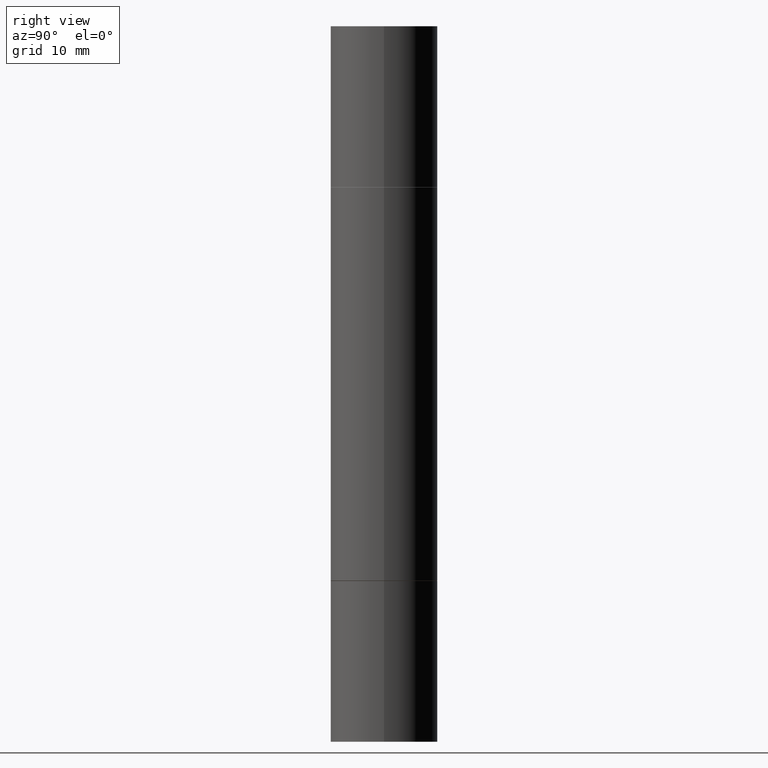
[diagram: clean part render]
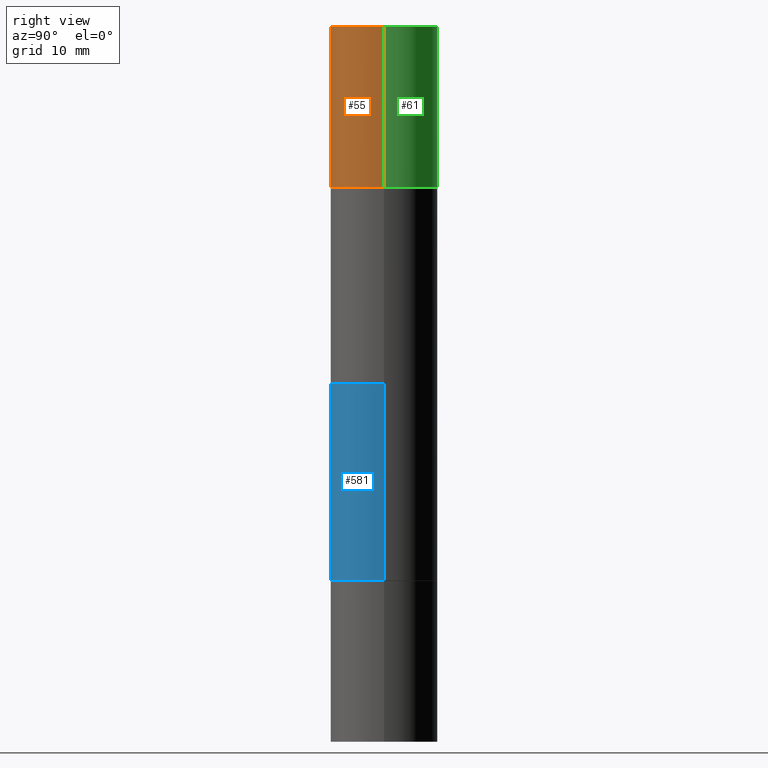
[diagram: same view with three faces highlighted in distinct colors, each labeled with its STEP entity id]
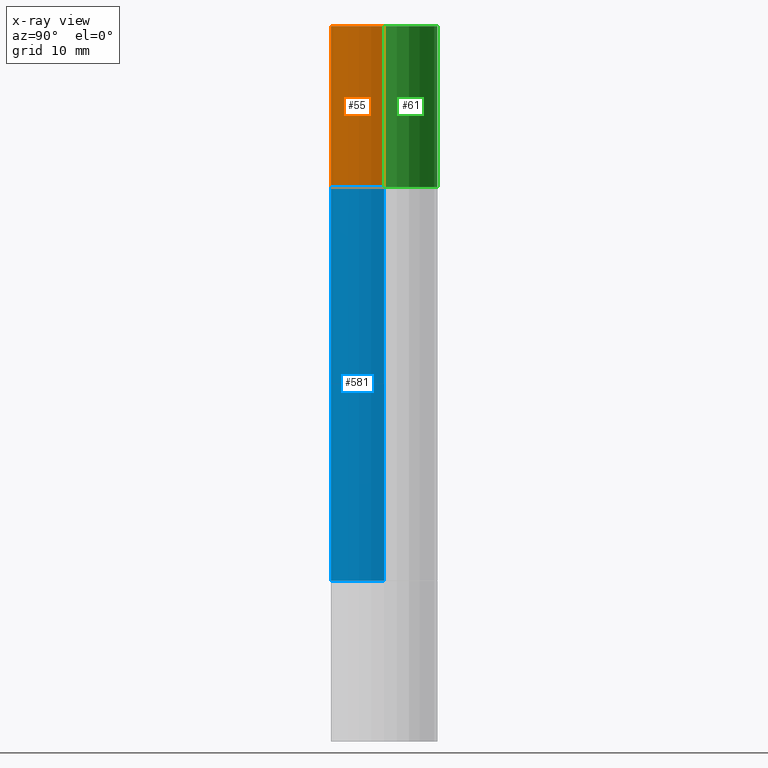
[diagram: x-ray of the same camera — body ghosted, the three highlighted faces saturated]
A machine part, right view with three faces highlighted in distinct colors.
The next image is the same camera in x-ray (body ghosted, the three faces saturated) — at least one of them is partly hidden behind the body in this view.
Their STEP definitions:

[orange] entity #55 — the highlighted cylindrical surface (partial cylindrical patch) has radius 4.7625 mm, axis along (-0, -0, -1).
#6 = VERTEX_POINT ( 'NONE', #224 ) ;
#37 = DIRECTION ( 'NONE',  ( -2.445468806185136597E-29, -3.492890411551752677E-15, -1.000000000000000000 ) ) ;
#49 = CYLINDRICAL_SURFACE ( 'NONE', #431, 0.1875000000000000278 ) ;
#55 = ADVANCED_FACE ( 'NONE', ( #403 ), #49, .T. ) ;
#72 = CARTESIAN_POINT ( 'NONE',  ( 0.1875000000000000278, -1.003977019005979665E-14, -2.499999999999999556 ) ) ;
#95 = CARTESIAN_POINT ( 'NONE',  ( 0.000000000000000000, -8.730464687993621641E-15, -2.499999999999999556 ) ) ;
#120 = ORIENTED_EDGE ( 'NONE', *, *, #253, .F. ) ;
#125 = ORIENTED_EDGE ( 'NONE', *, *, #487, .T. ) ;
#135 = DIRECTION ( 'NONE',  ( -2.445468806185136877E-29, -3.492890411551753071E-15, -1.000000000000000000 ) ) ;
#224 = CARTESIAN_POINT ( 'NONE',  ( 0.1875000000000000278, -1.307544161180414563E-15, 5.463695987328526437E-16 ) ) ;
#239 = DIRECTION ( 'NONE',  ( -2.445468806185136877E-29, -3.492890411551753071E-15, -1.000000000000000000 ) ) ;
#253 = EDGE_CURVE ( 'NONE', #6, #575, #302, .T. ) ;
#287 = VECTOR ( 'NONE', #135, 39.37007874015748143 ) ;
#302 = LINE ( 'NONE', #72, #545 ) ;
#325 = AXIS2_PLACEMENT_3D ( 'NONE', #640, #580, #480 ) ;
#340 = ORIENTED_EDGE ( 'NONE', *, *, #353, .F. ) ;
#353 = EDGE_CURVE ( 'NONE', #593, #6, #669, .T. ) ;
#403 = FACE_OUTER_BOUND ( 'NONE', #533, .T. ) ;
#407 = DIRECTION ( 'NONE',  ( 1.000000000000000000, -6.982962677686266711E-15, 0.000000000000000000 ) ) ;
#431 = AXIS2_PLACEMENT_3D ( 'NONE', #95, #37, #407 ) ;
#439 = EDGE_CURVE ( 'NONE', #593, #544, #451, .T. ) ;
#440 = DIRECTION ( 'NONE',  ( 2.445468806185136597E-29, 3.492890411551752677E-15, 1.000000000000000000 ) ) ;
#451 = LINE ( 'NONE', #663, #287 ) ;
#468 = CARTESIAN_POINT ( 'NONE',  ( -0.1875000000000000278, 3.066025098218802702E-16, -0.5619999999999996110 ) ) ;
#480 = DIRECTION ( 'NONE',  ( 1.000000000000000000, -6.982962677686265922E-15, 0.000000000000000000 ) ) ;
#487 = EDGE_CURVE ( 'NONE', #544, #575, #638, .T. ) ;
#533 = EDGE_LOOP ( 'NONE', ( #340, #635, #125, #120 ) ) ;
#539 = CARTESIAN_POINT ( 'NONE',  ( -0.1875000000000000278, 3.066025098218802702E-16, 5.463695987328561936E-16 ) ) ;
#541 = CARTESIAN_POINT ( 'NONE',  ( 0.1875000000000000278, -3.270548572472500038E-15, -0.5619999999999996110 ) ) ;
#544 = VERTEX_POINT ( 'NONE', #468 ) ;
#545 = VECTOR ( 'NONE', #239, 39.37007874015748143 ) ;
#549 = DIRECTION ( 'NONE',  ( 1.000000000000000000, -6.982962677686266711E-15, 0.000000000000000000 ) ) ;
#575 = VERTEX_POINT ( 'NONE', #541 ) ;
#580 = DIRECTION ( 'NONE',  ( 2.445468806185136597E-29, 3.492890411551752677E-15, 1.000000000000000000 ) ) ;
#593 = VERTEX_POINT ( 'NONE', #539 ) ;
#605 = CARTESIAN_POINT ( 'NONE',  ( 4.739318546386794397E-29, -1.961243070406324635E-15, -0.5619999999999996110 ) ) ;
#635 = ORIENTED_EDGE ( 'NONE', *, *, #439, .T. ) ;
#638 = CIRCLE ( 'NONE', #647, 0.1875000000000000278 ) ;
#640 = CARTESIAN_POINT ( 'NONE',  ( 6.113672015462842613E-29, 1.761340885760521790E-18, 5.463695987328526437E-16 ) ) ;
#647 = AXIS2_PLACEMENT_3D ( 'NONE', #605, #440, #549 ) ;
#663 = CARTESIAN_POINT ( 'NONE',  ( -0.1875000000000000278, -7.444121313411457895E-15, -2.499999999999999556 ) ) ;
#669 = CIRCLE ( 'NONE', #325, 0.1875000000000000278 ) ;

[blue] entity #581 — the highlighted cylindrical surface (partial cylindrical patch) has radius 4.7625 mm, axis along (-0, -0, -1).
#27 = AXIS2_PLACEMENT_3D ( 'NONE', #397, #454, #173 ) ;
#28 = VERTEX_POINT ( 'NONE', #413 ) ;
#76 = FACE_OUTER_BOUND ( 'NONE', #106, .T. ) ;
#106 = EDGE_LOOP ( 'NONE', ( #558, #286, #190, #350 ) ) ;
#113 = CARTESIAN_POINT ( 'NONE',  ( -0.1874999999999999722, -3.078008298971767937E-15, -1.936999999999999833 ) ) ;
#116 = LINE ( 'NONE', #168, #458 ) ;
#131 = DIRECTION ( 'NONE',  ( -2.445468806185136597E-29, -3.492890411551752677E-15, -1.000000000000000000 ) ) ;
#163 = CIRCLE ( 'NONE', #27, 0.1875000000000000278 ) ;
#168 = CARTESIAN_POINT ( 'NONE',  ( -0.1874999999999999167, -7.444121313411459473E-15, -2.499999999999999556 ) ) ;
#173 = DIRECTION ( 'NONE',  ( 1.000000000000000000, -6.982962677686266711E-15, 0.000000000000000000 ) ) ;
#190 = ORIENTED_EDGE ( 'NONE', *, *, #281, .T. ) ;
#220 = CIRCLE ( 'NONE', #531, 0.1875000000000000278 ) ;
#222 = CARTESIAN_POINT ( 'NONE',  ( -0.1875000000000000278, -6.783925862357143136E-16, -0.5629999999999997229 ) ) ;
#232 = VERTEX_POINT ( 'NONE', #314 ) ;
#234 = EDGE_CURVE ( 'NONE', #232, #28, #543, .T. ) ;
#237 = CARTESIAN_POINT ( 'NONE',  ( 4.736873077580609355E-29, -1.964735960817877172E-15, -0.5629999999999997229 ) ) ;
#254 = VECTOR ( 'NONE', #293, 39.37007874015748143 ) ;
#281 = EDGE_CURVE ( 'NONE', #592, #28, #163, .T. ) ;
#286 = ORIENTED_EDGE ( 'NONE', *, *, #570, .T. ) ;
#293 = DIRECTION ( 'NONE',  ( -2.445468806185136877E-29, -3.492890411551753071E-15, -1.000000000000000000 ) ) ;
#304 = EDGE_CURVE ( 'NONE', #373, #232, #220, .T. ) ;
#314 = CARTESIAN_POINT ( 'NONE',  ( 0.1875000000000000278, -3.274041462884052574E-15, -0.5629999999999997229 ) ) ;
#338 = DIRECTION ( 'NONE',  ( -2.445468806185136877E-29, -3.492890411551753071E-15, -1.000000000000000000 ) ) ;
#350 = ORIENTED_EDGE ( 'NONE', *, *, #234, .F. ) ;
#373 = VERTEX_POINT ( 'NONE', #222 ) ;
#397 = CARTESIAN_POINT ( 'NONE',  ( 4.736873077580609355E-29, -6.762999353339172249E-15, -1.936999999999999833 ) ) ;
#413 = CARTESIAN_POINT ( 'NONE',  ( 0.1875000000000000278, -8.072304855405348046E-15, -1.936999999999999833 ) ) ;
#449 = CYLINDRICAL_SURFACE ( 'NONE', #655, 0.1874999999999999167 ) ;
#454 = DIRECTION ( 'NONE',  ( -2.445468806185136597E-29, 3.491481338843145583E-15, 1.000000000000000000 ) ) ;
#458 = VECTOR ( 'NONE', #338, 39.37007874015748143 ) ;
#492 = CARTESIAN_POINT ( 'NONE',  ( 0.1874999999999999167, -1.003977019005979665E-14, -2.499999999999999556 ) ) ;
#504 = DIRECTION ( 'NONE',  ( 1.000000000000000000, -6.982962677686266711E-15, 0.000000000000000000 ) ) ;
#531 = AXIS2_PLACEMENT_3D ( 'NONE', #237, #554, #504 ) ;
#543 = LINE ( 'NONE', #492, #254 ) ;
#554 = DIRECTION ( 'NONE',  ( 2.445468806185136597E-29, 3.492890411551752677E-15, 1.000000000000000000 ) ) ;
#557 = CARTESIAN_POINT ( 'NONE',  ( 0.000000000000000000, -8.730464687993621641E-15, -2.499999999999999556 ) ) ;
#558 = ORIENTED_EDGE ( 'NONE', *, *, #304, .F. ) ;
#570 = EDGE_CURVE ( 'NONE', #373, #592, #116, .T. ) ;
#581 = ADVANCED_FACE ( 'NONE', ( #76 ), #449, .T. ) ;
#592 = VERTEX_POINT ( 'NONE', #113 ) ;
#655 = AXIS2_PLACEMENT_3D ( 'NONE', #557, #131, #659 ) ;
#659 = DIRECTION ( 'NONE',  ( 1.000000000000000000, -6.982962677686270655E-15, 0.000000000000000000 ) ) ;

[green] entity #61 — the highlighted cylindrical surface (partial cylindrical patch) has radius 4.7625 mm, axis along (-0, -0, -1).
#6 = VERTEX_POINT ( 'NONE', #224 ) ;
#45 = CYLINDRICAL_SURFACE ( 'NONE', #252, 0.1875000000000000278 ) ;
#60 = EDGE_CURVE ( 'NONE', #575, #544, #138, .T. ) ;
#61 = ADVANCED_FACE ( 'NONE', ( #360 ), #45, .T. ) ;
#67 = EDGE_LOOP ( 'NONE', ( #387, #157, #509, #409 ) ) ;
#72 = CARTESIAN_POINT ( 'NONE',  ( 0.1875000000000000278, -1.003977019005979665E-14, -2.499999999999999556 ) ) ;
#126 = DIRECTION ( 'NONE',  ( 1.000000000000000000, -6.982962677686265922E-15, 0.000000000000000000 ) ) ;
#135 = DIRECTION ( 'NONE',  ( -2.445468806185136877E-29, -3.492890411551753071E-15, -1.000000000000000000 ) ) ;
#138 = CIRCLE ( 'NONE', #329, 0.1875000000000000278 ) ;
#157 = ORIENTED_EDGE ( 'NONE', *, *, #475, .F. ) ;
#182 = CIRCLE ( 'NONE', #481, 0.1875000000000000278 ) ;
#224 = CARTESIAN_POINT ( 'NONE',  ( 0.1875000000000000278, -1.307544161180414563E-15, 5.463695987328526437E-16 ) ) ;
#239 = DIRECTION ( 'NONE',  ( -2.445468806185136877E-29, -3.492890411551753071E-15, -1.000000000000000000 ) ) ;
#252 = AXIS2_PLACEMENT_3D ( 'NONE', #527, #520, #530 ) ;
#253 = EDGE_CURVE ( 'NONE', #6, #575, #302, .T. ) ;
#287 = VECTOR ( 'NONE', #135, 39.37007874015748143 ) ;
#302 = LINE ( 'NONE', #72, #545 ) ;
#329 = AXIS2_PLACEMENT_3D ( 'NONE', #522, #515, #460 ) ;
#360 = FACE_OUTER_BOUND ( 'NONE', #67, .T. ) ;
#387 = ORIENTED_EDGE ( 'NONE', *, *, #439, .F. ) ;
#393 = CARTESIAN_POINT ( 'NONE',  ( 6.113672015462842613E-29, 1.761340885760521790E-18, 5.463695987328526437E-16 ) ) ;
#409 = ORIENTED_EDGE ( 'NONE', *, *, #60, .T. ) ;
#439 = EDGE_CURVE ( 'NONE', #593, #544, #451, .T. ) ;
#451 = LINE ( 'NONE', #663, #287 ) ;
#460 = DIRECTION ( 'NONE',  ( 1.000000000000000000, -6.982962677686266711E-15, 0.000000000000000000 ) ) ;
#468 = CARTESIAN_POINT ( 'NONE',  ( -0.1875000000000000278, 3.066025098218802702E-16, -0.5619999999999996110 ) ) ;
#475 = EDGE_CURVE ( 'NONE', #6, #593, #182, .T. ) ;
#481 = AXIS2_PLACEMENT_3D ( 'NONE', #393, #653, #126 ) ;
#509 = ORIENTED_EDGE ( 'NONE', *, *, #253, .T. ) ;
#515 = DIRECTION ( 'NONE',  ( 2.445468806185136597E-29, 3.492890411551752677E-15, 1.000000000000000000 ) ) ;
#520 = DIRECTION ( 'NONE',  ( -2.445468806185136597E-29, -3.492890411551752677E-15, -1.000000000000000000 ) ) ;
#522 = CARTESIAN_POINT ( 'NONE',  ( 4.739318546386794397E-29, -1.961243070406324635E-15, -0.5619999999999996110 ) ) ;
#527 = CARTESIAN_POINT ( 'NONE',  ( 0.000000000000000000, -8.730464687993621641E-15, -2.499999999999999556 ) ) ;
#530 = DIRECTION ( 'NONE',  ( 1.000000000000000000, -6.982962677686266711E-15, 0.000000000000000000 ) ) ;
#539 = CARTESIAN_POINT ( 'NONE',  ( -0.1875000000000000278, 3.066025098218802702E-16, 5.463695987328561936E-16 ) ) ;
#541 = CARTESIAN_POINT ( 'NONE',  ( 0.1875000000000000278, -3.270548572472500038E-15, -0.5619999999999996110 ) ) ;
#544 = VERTEX_POINT ( 'NONE', #468 ) ;
#545 = VECTOR ( 'NONE', #239, 39.37007874015748143 ) ;
#575 = VERTEX_POINT ( 'NONE', #541 ) ;
#593 = VERTEX_POINT ( 'NONE', #539 ) ;
#653 = DIRECTION ( 'NONE',  ( 2.445468806185136597E-29, 3.492890411551752677E-15, 1.000000000000000000 ) ) ;
#663 = CARTESIAN_POINT ( 'NONE',  ( -0.1875000000000000278, -7.444121313411457895E-15, -2.499999999999999556 ) ) ;